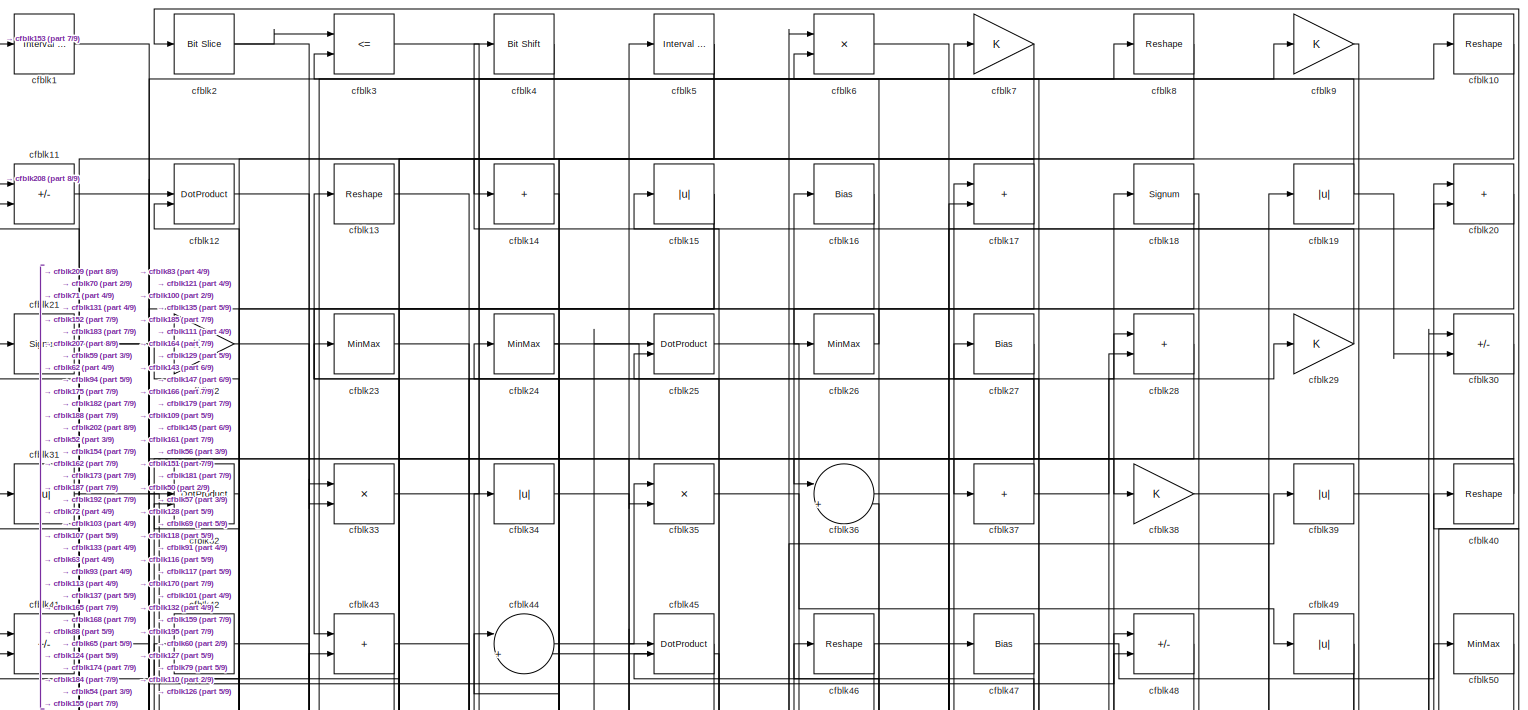
[diagram: root canvas - part 1/9, full width, top band]
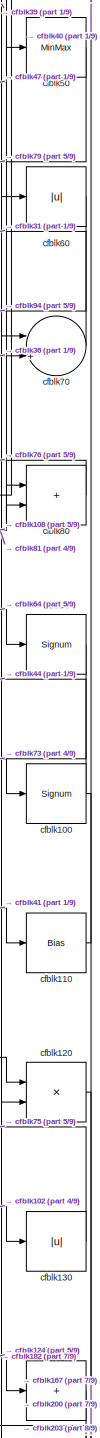
[diagram: root canvas - part 2/9, middle right region]
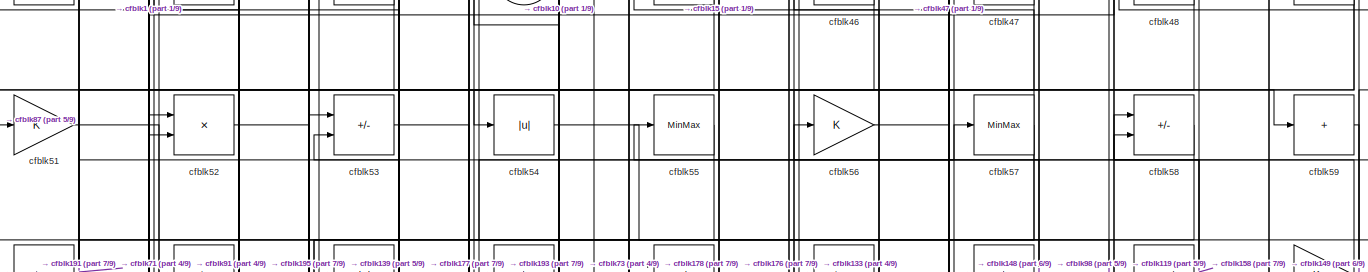
[diagram: root canvas - part 3/9, full width, top band]
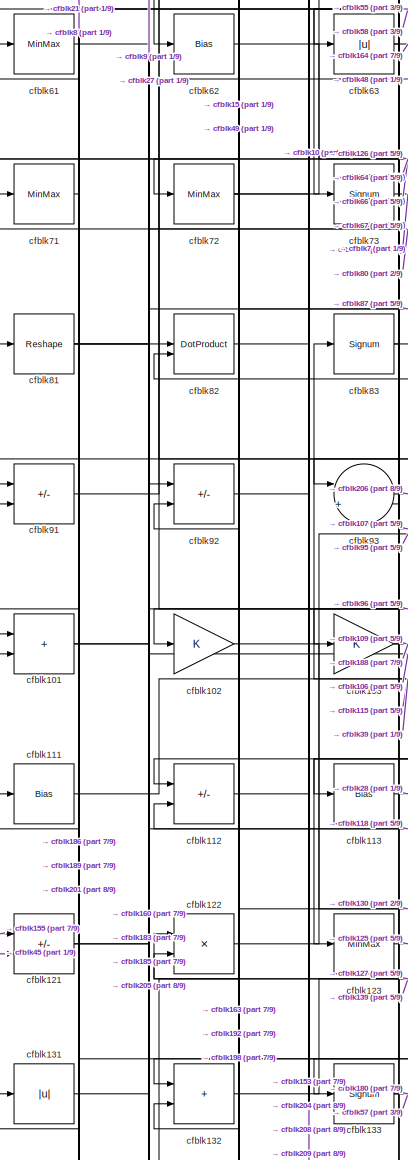
[diagram: root canvas - part 4/9, middle left region]
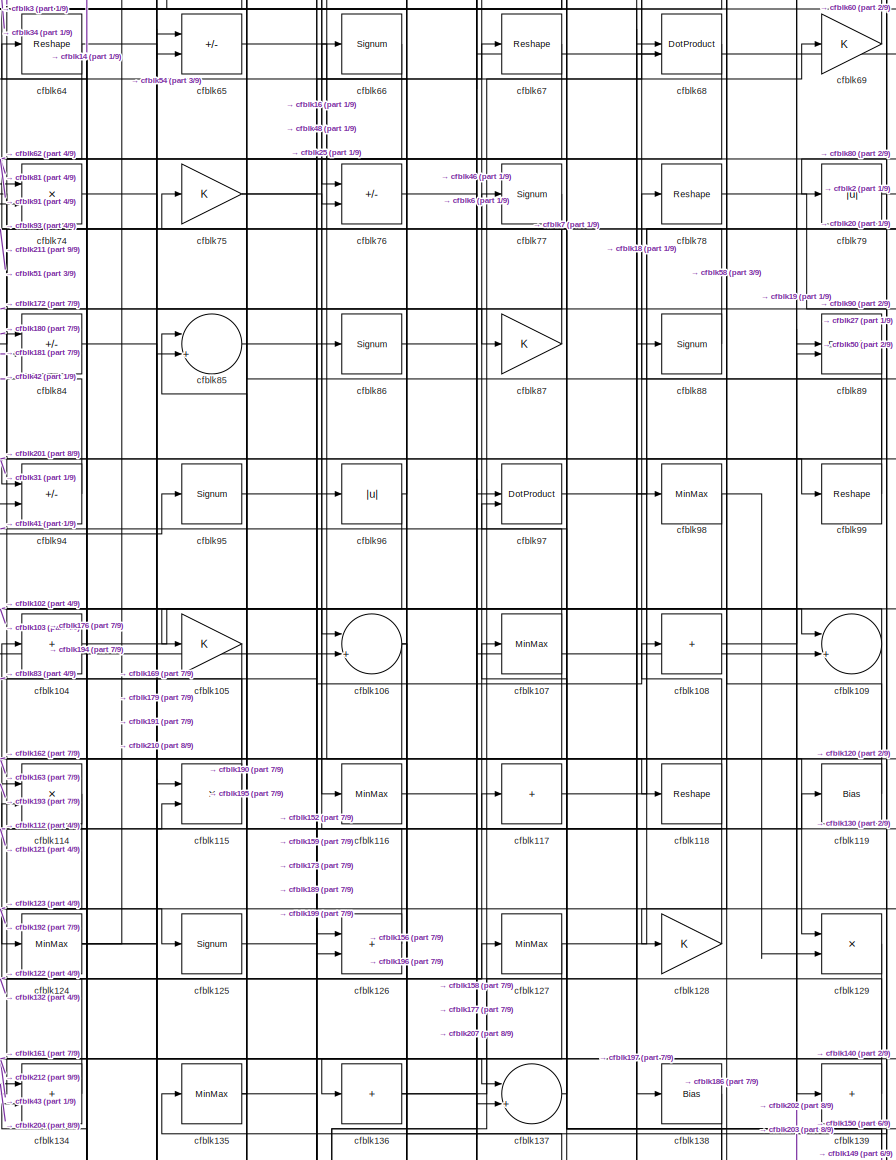
[diagram: root canvas - part 5/9, central region]
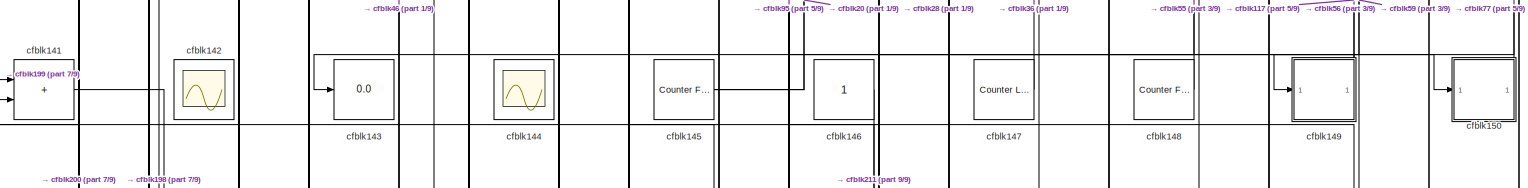
[diagram: root canvas - part 6/9, full width, middle band]
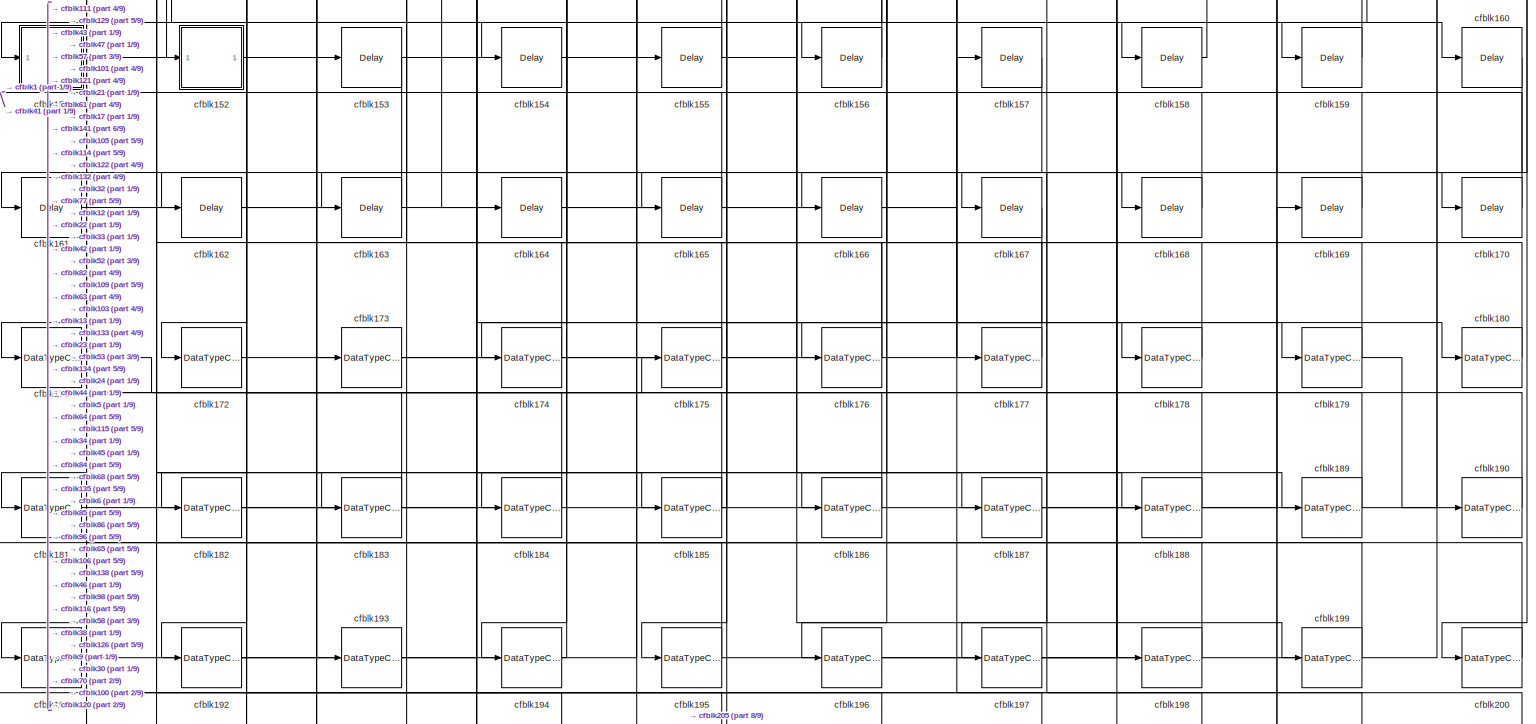
[diagram: root canvas - part 7/9, full width, bottom band]
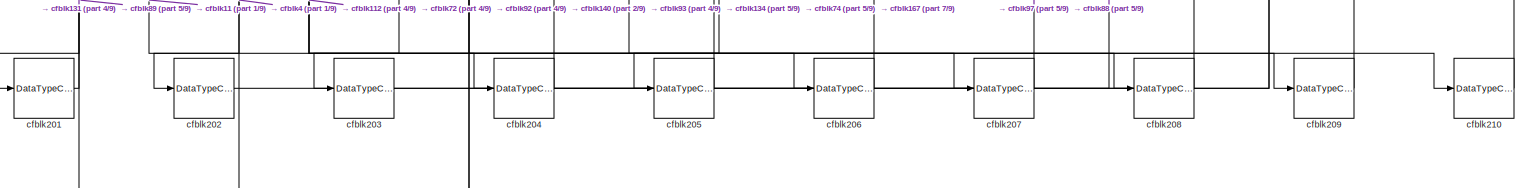
[diagram: root canvas - part 8/9, full width, bottom band]
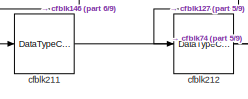
[diagram: root canvas - part 9/9, bottom left region]
MODEL slx_d4f791495eb2
KIND model
CONFIG AbsTol = auto
CONFIG EnableMultiTasking = off
CONFIG FixedStep = auto
CONFIG MaxStep = auto
CONFIG MinStep = auto
CONFIG RelTol = 1e-3
CONFIG SampleTimeConstraint = Unconstrained
CONFIG SolverName = VariableStepAuto
CONFIG StartTime = 0.0
CONFIG StopTime = 10.0
BLOCK [Reference] cfblk1  REF=hdlsllib/Logic and Bit
Operations/Interval Test
  SourceBlock = hdlsllib/Logic and Bit\nOperations/Interval Test
  SourceType = Interval Test
BLOCK [Reshape] cfblk10
BLOCK [Signum] cfblk100
BLOCK [Sum] cfblk101
  IconShape = rectangular
BLOCK [Gain] cfblk102
BLOCK [Gain] cfblk103
BLOCK [Sum] cfblk104
  IconShape = rectangular
  Inputs = +
BLOCK [Gain] cfblk105
BLOCK [Sum] cfblk106
  Inputs = |++
BLOCK [MinMax] cfblk107
BLOCK [Sum] cfblk108
  IconShape = rectangular
  Inputs = +
BLOCK [Sum] cfblk109
  Inputs = |++
BLOCK [Sum] cfblk11
  IconShape = rectangular
  Inputs = +-
BLOCK [Bias] cfblk110
  Bias = 0.0
  SaturateOnIntegerOverflow = off
BLOCK [Bias] cfblk111
  Bias = 0.0
  SaturateOnIntegerOverflow = off
BLOCK [Sum] cfblk112
  IconShape = rectangular
  Inputs = +-
BLOCK [Bias] cfblk113
  Bias = 0.0
  SaturateOnIntegerOverflow = off
BLOCK [Product] cfblk114
  Inputs = */
  RndMeth = Zero
  SaturateOnIntegerOverflow = on
BLOCK [Product] cfblk115
  Inputs = */
  RndMeth = Zero
  SaturateOnIntegerOverflow = on
BLOCK [MinMax] cfblk116
BLOCK [Sum] cfblk117
  IconShape = rectangular
  Inputs = +
BLOCK [Reshape] cfblk118
BLOCK [Bias] cfblk119
  Bias = 0.0
  SaturateOnIntegerOverflow = off
BLOCK [DotProduct] cfblk12
  OutDataTypeStr = Inherit: Inherit via internal rule
BLOCK [Product] cfblk120
  Inputs = */
  RndMeth = Zero
  SaturateOnIntegerOverflow = on
BLOCK [Sum] cfblk121
  IconShape = rectangular
  Inputs = +-
BLOCK [Product] cfblk122
  Inputs = */
  RndMeth = Zero
  SaturateOnIntegerOverflow = on
BLOCK [MinMax] cfblk123
BLOCK [MinMax] cfblk124
BLOCK [Signum] cfblk125
BLOCK [Sum] cfblk126
  IconShape = rectangular
BLOCK [MinMax] cfblk127
BLOCK [Gain] cfblk128
BLOCK [Product] cfblk129
  Inputs = */
  RndMeth = Zero
  SaturateOnIntegerOverflow = on
BLOCK [Reshape] cfblk13
BLOCK [Abs] cfblk130
  SaturateOnIntegerOverflow = off
BLOCK [Abs] cfblk131
  SaturateOnIntegerOverflow = off
BLOCK [Sum] cfblk132
  IconShape = rectangular
BLOCK [Signum] cfblk133
BLOCK [Sum] cfblk134
  IconShape = rectangular
BLOCK [MinMax] cfblk135
BLOCK [Sum] cfblk136
  IconShape = rectangular
  Inputs = +
BLOCK [Sum] cfblk137
  Inputs = |++
BLOCK [Bias] cfblk138
  Bias = 0.0
  SaturateOnIntegerOverflow = off
BLOCK [Sum] cfblk139
  IconShape = rectangular
  Inputs = +
BLOCK [Sum] cfblk14
  IconShape = rectangular
  Inputs = +
BLOCK [Sum] cfblk140
  IconShape = rectangular
  Inputs = +
BLOCK [Sum] cfblk141
  IconShape = rectangular
BLOCK [Scope] cfblk142
  Floating = on
  NumInputPorts = 1
  ScopeSpecificationString = Simulink.scopes.TimeScopeBlockCfg('CurrentConfiguration', extmgr.ConfigurationSet(extmgr.Configuration('Core','General UI',true,'FigureColor',[0.156862745098039 0.156862745098039 0.156862745098039]),extmgr.Configuration('Core','Source UI',true),extmgr.Configuration('Sources','WiredSimulink',true,'DataLoggingVariableName','ScopeData1','DataLoggingSaveFormat','StructureWithTime','DataLoggingLimitDat...<+2713ch>
BLOCK [Display] cfblk143
  Decimation = 1
BLOCK [Scope] cfblk144
  Floating = on
  NumInputPorts = 1
  ScopeSpecificationString = Simulink.scopes.TimeScopeBlockCfg('CurrentConfiguration', extmgr.ConfigurationSet(extmgr.Configuration('Core','General UI',true,'FigureColor',[0.156862745098039 0.156862745098039 0.156862745098039]),extmgr.Configuration('Core','Source UI',true),extmgr.Configuration('Sources','WiredSimulink',true,'DataLoggingVariableName','ScopeData1','DataLoggingSaveFormat','StructureWithTime','DataLoggingLimitDat...<+2713ch>
BLOCK [Reference] cfblk145  REF=hdlsllib/Sources/Counter
Free-Running
  SourceBlock = hdlsllib/Sources/Counter\nFree-Running
  SourceType = Counter Free-Running
BLOCK [Constant] cfblk146
  SampleTime = -1
BLOCK [Reference] cfblk147  REF=hdlsllib/Sources/Counter
Limited
  SourceBlock = hdlsllib/Sources/Counter\nLimited
  SourceType = Counter Limited
BLOCK [Reference] cfblk148  REF=hdlsllib/Sources/Counter
Free-Running
  SourceBlock = hdlsllib/Sources/Counter\nFree-Running
  SourceType = Counter Free-Running
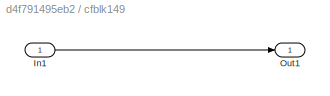
BLOCK [SubSystem] cfblk149
  LibrarySourceBlock = hdlsllib/Ports &\nSubsystems/Subsystem
BLOCK [Inport] cfblk149/In1
BLOCK [Outport] cfblk149/Out1
BLOCK [Abs] cfblk15
  SaturateOnIntegerOverflow = off
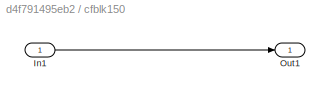
BLOCK [SubSystem] cfblk150
  LibrarySourceBlock = hdlsllib/Ports &\nSubsystems/Subsystem
BLOCK [Inport] cfblk150/In1
BLOCK [Outport] cfblk150/Out1
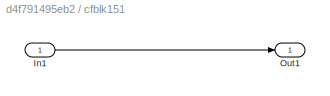
BLOCK [SubSystem] cfblk151
  LibrarySourceBlock = hdlsllib/Ports &\nSubsystems/Subsystem
BLOCK [Inport] cfblk151/In1
BLOCK [Outport] cfblk151/Out1
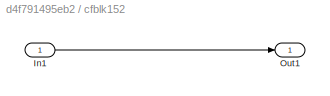
BLOCK [SubSystem] cfblk152
  LibrarySourceBlock = hdlsllib/Ports &\nSubsystems/Subsystem
BLOCK [Inport] cfblk152/In1
BLOCK [Outport] cfblk152/Out1
BLOCK [Delay] cfblk153
  InputPortMap = u0
  SampleTime = 1
BLOCK [Delay] cfblk154
  InputPortMap = u0
  SampleTime = 1
BLOCK [Delay] cfblk155
  InputPortMap = u0
  SampleTime = 1
BLOCK [Delay] cfblk156
  InputPortMap = u0
  SampleTime = 1
BLOCK [Delay] cfblk157
  InputPortMap = u0
  SampleTime = 1
BLOCK [Delay] cfblk158
  InputPortMap = u0
  SampleTime = 1
BLOCK [Delay] cfblk159
  InputPortMap = u0
  SampleTime = 1
BLOCK [Bias] cfblk16
  Bias = 0.0
  SaturateOnIntegerOverflow = off
BLOCK [Delay] cfblk160
  InputPortMap = u0
  SampleTime = 1
BLOCK [Delay] cfblk161
  InputPortMap = u0
  SampleTime = 1
BLOCK [Delay] cfblk162
  InputPortMap = u0
  SampleTime = 1
BLOCK [Delay] cfblk163
  InputPortMap = u0
  SampleTime = 1
BLOCK [Delay] cfblk164
  InputPortMap = u0
  SampleTime = 1
BLOCK [Delay] cfblk165
  InputPortMap = u0
  SampleTime = 1
BLOCK [Delay] cfblk166
  InputPortMap = u0
  SampleTime = 1
BLOCK [Delay] cfblk167
  InputPortMap = u0
  SampleTime = 1
BLOCK [Delay] cfblk168
  InputPortMap = u0
  SampleTime = 1
BLOCK [Delay] cfblk169
  InputPortMap = u0
  SampleTime = 1
BLOCK [Sum] cfblk17
  IconShape = rectangular
BLOCK [Delay] cfblk170
  InputPortMap = u0
  SampleTime = 1
BLOCK [DataTypeConversion] cfblk171
  OutDataTypeStr = uint8
  RndMeth = Floor
  SaturateOnIntegerOverflow = off
BLOCK [DataTypeConversion] cfblk172
  OutDataTypeStr = uint8
  RndMeth = Floor
  SaturateOnIntegerOverflow = off
BLOCK [DataTypeConversion] cfblk173
  OutDataTypeStr = uint8
  RndMeth = Floor
  SaturateOnIntegerOverflow = off
BLOCK [DataTypeConversion] cfblk174
  OutDataTypeStr = uint8
  RndMeth = Floor
  SaturateOnIntegerOverflow = off
BLOCK [DataTypeConversion] cfblk175
  OutDataTypeStr = uint8
  RndMeth = Floor
  SaturateOnIntegerOverflow = off
BLOCK [DataTypeConversion] cfblk176
  RndMeth = Floor
  SaturateOnIntegerOverflow = off
BLOCK [DataTypeConversion] cfblk177
  OutDataTypeStr = uint8
  RndMeth = Floor
  SaturateOnIntegerOverflow = off
BLOCK [DataTypeConversion] cfblk178
  OutDataTypeStr = uint8
  RndMeth = Floor
  SaturateOnIntegerOverflow = off
BLOCK [DataTypeConversion] cfblk179
  RndMeth = Floor
  SaturateOnIntegerOverflow = off
BLOCK [Signum] cfblk18
BLOCK [DataTypeConversion] cfblk180
  OutDataTypeStr = uint8
  RndMeth = Floor
  SaturateOnIntegerOverflow = off
BLOCK [DataTypeConversion] cfblk181
  OutDataTypeStr = uint8
  RndMeth = Floor
  SaturateOnIntegerOverflow = off
BLOCK [DataTypeConversion] cfblk182
  OutDataTypeStr = uint8
  RndMeth = Floor
  SaturateOnIntegerOverflow = off
BLOCK [DataTypeConversion] cfblk183
  OutDataTypeStr = uint8
  RndMeth = Floor
  SaturateOnIntegerOverflow = off
BLOCK [DataTypeConversion] cfblk184
  OutDataTypeStr = uint8
  RndMeth = Floor
  SaturateOnIntegerOverflow = off
BLOCK [DataTypeConversion] cfblk185
  RndMeth = Floor
  SaturateOnIntegerOverflow = off
BLOCK [DataTypeConversion] cfblk186
  OutDataTypeStr = uint8
  RndMeth = Floor
  SaturateOnIntegerOverflow = off
BLOCK [DataTypeConversion] cfblk187
  OutDataTypeStr = uint8
  RndMeth = Floor
  SaturateOnIntegerOverflow = off
BLOCK [DataTypeConversion] cfblk188
  OutDataTypeStr = uint8
  RndMeth = Floor
  SaturateOnIntegerOverflow = off
BLOCK [DataTypeConversion] cfblk189
  OutDataTypeStr = uint8
  RndMeth = Floor
  SaturateOnIntegerOverflow = off
BLOCK [Abs] cfblk19
  SaturateOnIntegerOverflow = off
BLOCK [DataTypeConversion] cfblk190
  OutDataTypeStr = uint8
  RndMeth = Floor
  SaturateOnIntegerOverflow = off
BLOCK [DataTypeConversion] cfblk191
  OutDataTypeStr = uint8
  RndMeth = Floor
  SaturateOnIntegerOverflow = off
BLOCK [DataTypeConversion] cfblk192
  RndMeth = Floor
  SaturateOnIntegerOverflow = off
BLOCK [DataTypeConversion] cfblk193
  OutDataTypeStr = uint8
  RndMeth = Floor
  SaturateOnIntegerOverflow = off
BLOCK [DataTypeConversion] cfblk194
  OutDataTypeStr = uint8
  RndMeth = Floor
  SaturateOnIntegerOverflow = off
BLOCK [DataTypeConversion] cfblk195
  RndMeth = Floor
  SaturateOnIntegerOverflow = off
BLOCK [DataTypeConversion] cfblk196
  OutDataTypeStr = uint8
  RndMeth = Floor
  SaturateOnIntegerOverflow = off
BLOCK [DataTypeConversion] cfblk197
  OutDataTypeStr = uint8
  RndMeth = Floor
  SaturateOnIntegerOverflow = off
BLOCK [DataTypeConversion] cfblk198
  OutDataTypeStr = uint8
  RndMeth = Floor
  SaturateOnIntegerOverflow = off
BLOCK [DataTypeConversion] cfblk199
  OutDataTypeStr = uint8
  RndMeth = Floor
  SaturateOnIntegerOverflow = off
BLOCK [Reference] cfblk2  REF=hdlsllib/Logic and Bit
Operations/Bit Slice
  SourceBlock = hdlsllib/Logic and Bit\nOperations/Bit Slice
  SourceType = Bit Slice
BLOCK [Sum] cfblk20
  IconShape = rectangular
BLOCK [DataTypeConversion] cfblk200
  OutDataTypeStr = uint8
  RndMeth = Floor
  SaturateOnIntegerOverflow = off
BLOCK [DataTypeConversion] cfblk201
  OutDataTypeStr = uint8
  RndMeth = Floor
  SaturateOnIntegerOverflow = off
BLOCK [DataTypeConversion] cfblk202
  OutDataTypeStr = uint8
  RndMeth = Floor
  SaturateOnIntegerOverflow = off
BLOCK [DataTypeConversion] cfblk203
  OutDataTypeStr = uint8
  RndMeth = Floor
  SaturateOnIntegerOverflow = off
BLOCK [DataTypeConversion] cfblk204
  RndMeth = Floor
  SaturateOnIntegerOverflow = off
BLOCK [DataTypeConversion] cfblk205
  OutDataTypeStr = uint8
  RndMeth = Floor
  SaturateOnIntegerOverflow = off
BLOCK [DataTypeConversion] cfblk206
  OutDataTypeStr = uint8
  RndMeth = Floor
  SaturateOnIntegerOverflow = off
BLOCK [DataTypeConversion] cfblk207
  OutDataTypeStr = uint8
  RndMeth = Floor
  SaturateOnIntegerOverflow = off
BLOCK [DataTypeConversion] cfblk208
  OutDataTypeStr = uint8
  RndMeth = Floor
  SaturateOnIntegerOverflow = off
BLOCK [DataTypeConversion] cfblk209
  OutDataTypeStr = uint8
  RndMeth = Floor
  SaturateOnIntegerOverflow = off
BLOCK [Signum] cfblk21
BLOCK [DataTypeConversion] cfblk210
  OutDataTypeStr = uint8
  RndMeth = Floor
  SaturateOnIntegerOverflow = off
BLOCK [DataTypeConversion] cfblk211
  OutDataTypeStr = uint8
  RndMeth = Floor
  SaturateOnIntegerOverflow = off
BLOCK [DataTypeConversion] cfblk212
  OutDataTypeStr = uint8
  RndMeth = Floor
  SaturateOnIntegerOverflow = off
BLOCK [Gain] cfblk22
BLOCK [MinMax] cfblk23
BLOCK [MinMax] cfblk24
BLOCK [DotProduct] cfblk25
  OutDataTypeStr = Inherit: Inherit via internal rule
BLOCK [MinMax] cfblk26
BLOCK [Bias] cfblk27
  Bias = 0.0
  SaturateOnIntegerOverflow = off
BLOCK [Sum] cfblk28
  IconShape = rectangular
BLOCK [Gain] cfblk29
BLOCK [RelationalOperator] cfblk3
  InputSameDT = off
  Operator = <=
  OutDataTypeStr = boolean
BLOCK [Sum] cfblk30
  IconShape = rectangular
  Inputs = +-
BLOCK [Abs] cfblk31
  SaturateOnIntegerOverflow = off
BLOCK [DotProduct] cfblk32
  OutDataTypeStr = Inherit: Inherit via internal rule
BLOCK [Product] cfblk33
  Inputs = */
  RndMeth = Zero
  SaturateOnIntegerOverflow = on
BLOCK [Abs] cfblk34
  SaturateOnIntegerOverflow = off
BLOCK [Product] cfblk35
  Inputs = */
  RndMeth = Zero
  SaturateOnIntegerOverflow = on
BLOCK [Sum] cfblk36
  Inputs = |++
BLOCK [Sum] cfblk37
  IconShape = rectangular
  Inputs = +
BLOCK [Gain] cfblk38
BLOCK [Abs] cfblk39
  SaturateOnIntegerOverflow = off
BLOCK [Reference] cfblk4  REF=hdlsllib/Logic and Bit
Operations/Bit Shift
  SourceBlock = hdlsllib/Logic and Bit\nOperations/Bit Shift
  SourceType = Bit Shift
BLOCK [Reshape] cfblk40
BLOCK [Sum] cfblk41
  IconShape = rectangular
  Inputs = +-
BLOCK [Sum] cfblk42
  IconShape = rectangular
  Inputs = +
BLOCK [Sum] cfblk43
  IconShape = rectangular
BLOCK [Sum] cfblk44
  Inputs = |++
BLOCK [DotProduct] cfblk45
  OutDataTypeStr = Inherit: Inherit via internal rule
BLOCK [Reshape] cfblk46
BLOCK [Bias] cfblk47
  Bias = 0.0
  SaturateOnIntegerOverflow = off
BLOCK [Sum] cfblk48
  IconShape = rectangular
  Inputs = +-
BLOCK [Abs] cfblk49
  SaturateOnIntegerOverflow = off
BLOCK [Reference] cfblk5  REF=hdlsllib/Logic and Bit
Operations/Interval Test
  SourceBlock = hdlsllib/Logic and Bit\nOperations/Interval Test
  SourceType = Interval Test
BLOCK [MinMax] cfblk50
BLOCK [Gain] cfblk51
BLOCK [Product] cfblk52
  Inputs = */
  RndMeth = Zero
  SaturateOnIntegerOverflow = on
BLOCK [Sum] cfblk53
  IconShape = rectangular
  Inputs = +-
BLOCK [Abs] cfblk54
  SaturateOnIntegerOverflow = off
BLOCK [MinMax] cfblk55
BLOCK [Gain] cfblk56
BLOCK [MinMax] cfblk57
BLOCK [Sum] cfblk58
  IconShape = rectangular
  Inputs = +-
BLOCK [Sum] cfblk59
  IconShape = rectangular
  Inputs = +
BLOCK [Product] cfblk6
  Inputs = */
  RndMeth = Zero
  SaturateOnIntegerOverflow = on
BLOCK [Abs] cfblk60
  SaturateOnIntegerOverflow = off
BLOCK [MinMax] cfblk61
BLOCK [Bias] cfblk62
  Bias = 0.0
  SaturateOnIntegerOverflow = off
BLOCK [Abs] cfblk63
  SaturateOnIntegerOverflow = off
BLOCK [Reshape] cfblk64
BLOCK [Sum] cfblk65
  IconShape = rectangular
  Inputs = +-
BLOCK [Signum] cfblk66
BLOCK [Reshape] cfblk67
BLOCK [DotProduct] cfblk68
  OutDataTypeStr = Inherit: Inherit via internal rule
BLOCK [Gain] cfblk69
BLOCK [Gain] cfblk7
BLOCK [Sum] cfblk70
  Inputs = |++
BLOCK [MinMax] cfblk71
BLOCK [MinMax] cfblk72
BLOCK [Signum] cfblk73
BLOCK [Product] cfblk74
  Inputs = */
  RndMeth = Zero
  SaturateOnIntegerOverflow = on
BLOCK [Gain] cfblk75
BLOCK [Sum] cfblk76
  IconShape = rectangular
  Inputs = +-
BLOCK [Signum] cfblk77
BLOCK [Reshape] cfblk78
BLOCK [Abs] cfblk79
  SaturateOnIntegerOverflow = off
BLOCK [Reshape] cfblk8
BLOCK [Sum] cfblk80
  IconShape = rectangular
BLOCK [Reshape] cfblk81
BLOCK [DotProduct] cfblk82
  OutDataTypeStr = Inherit: Inherit via internal rule
BLOCK [Signum] cfblk83
BLOCK [Sum] cfblk84
  IconShape = rectangular
  Inputs = +-
BLOCK [Sum] cfblk85
  Inputs = |++
BLOCK [Signum] cfblk86
BLOCK [Gain] cfblk87
BLOCK [Signum] cfblk88
BLOCK [DotProduct] cfblk89
  OutDataTypeStr = Inherit: Inherit via internal rule
BLOCK [Gain] cfblk9
BLOCK [Signum] cfblk90
BLOCK [Sum] cfblk91
  IconShape = rectangular
  Inputs = +-
BLOCK [Sum] cfblk92
  IconShape = rectangular
  Inputs = +-
BLOCK [Sum] cfblk93
  Inputs = |++
BLOCK [Sum] cfblk94
  IconShape = rectangular
  Inputs = +-
BLOCK [Signum] cfblk95
BLOCK [Abs] cfblk96
  SaturateOnIntegerOverflow = off
BLOCK [DotProduct] cfblk97
  OutDataTypeStr = Inherit: Inherit via internal rule
BLOCK [MinMax] cfblk98
BLOCK [Reshape] cfblk99
NET cfblk100:1 -> cfblk200:1, cfblk44:2
NET cfblk101:1 -> cfblk160:1, cfblk9:1
LINE cfblk102:1 -> cfblk130:1
NET cfblk103:1 -> cfblk109:1, cfblk188:1
LINE cfblk104:1 -> cfblk106:1
LINE cfblk105:1 -> cfblk162:1
NET cfblk106:1 -> cfblk136:1, cfblk156:1, cfblk194:1
NET cfblk107:1 -> cfblk123:1, cfblk41:2
LINE cfblk108:1 -> cfblk80:2
NET cfblk109:1 -> cfblk105:1, cfblk163:1
LINE cfblk10:1 -> cfblk54:1
LINE cfblk110:1 -> cfblk40:1
LINE cfblk111:1 -> cfblk39:1
LINE cfblk112:1 -> cfblk208:1
LINE cfblk113:1 -> cfblk28:1
LINE cfblk114:1 -> cfblk192:1
LINE cfblk115:1 -> cfblk83:1
LINE cfblk116:1 -> cfblk158:1
LINE cfblk117:1 -> cfblk19:1
NET cfblk118:1 -> cfblk112:2, cfblk18:1
LINE cfblk119:1 -> cfblk58:1
LINE cfblk11:1 -> cfblk207:1
LINE cfblk120:1 -> cfblk167:1
NET cfblk121:1 -> cfblk115:2, cfblk183:1
LINE cfblk122:1 -> cfblk95:1
LINE cfblk123:1 -> cfblk125:1
NET cfblk124:1 -> cfblk119:1, cfblk140:1, cfblk25:1
LINE cfblk125:1 -> cfblk108:1
LINE cfblk126:1 -> cfblk16:1
NET cfblk127:1 -> cfblk20:1, cfblk212:1
LINE cfblk128:1 -> cfblk7:1
LINE cfblk129:1 -> cfblk161:1
LINE cfblk12:1 -> cfblk173:1
LINE cfblk130:1 -> cfblk75:1
LINE cfblk131:1 -> cfblk48:2
LINE cfblk132:1 -> cfblk127:1
NET cfblk133:1 -> cfblk180:1, cfblk57:1
LINE cfblk134:1 -> cfblk104:1
NET cfblk135:1 -> cfblk199:1, cfblk25:2
NET cfblk136:1 -> cfblk137:2, cfblk69:1
LINE cfblk137:1 -> cfblk107:1
LINE cfblk138:1 -> cfblk186:1
LINE cfblk139:1 -> cfblk122:1
LINE cfblk13:1 -> cfblk168:1
LINE cfblk140:1 -> cfblk203:1
LINE cfblk141:1 -> cfblk198:1
NET cfblk145:1 -> cfblk20:2, cfblk28:2
LINE cfblk146:1 -> cfblk211:1
LINE cfblk147:1 -> cfblk36:2
LINE cfblk148:1 -> cfblk55:1
LINE cfblk149/In1:1 -> cfblk149/Out1:1
NET cfblk149:1 -> cfblk117:1, cfblk56:1
LINE cfblk14:1 -> cfblk124:1
LINE cfblk150/In1:1 -> cfblk150/Out1:1
LINE cfblk150:1 -> cfblk77:1
LINE cfblk151/In1:1 -> cfblk151/Out1:1
LINE cfblk151:1 -> cfblk17:1
LINE cfblk152/In1:1 -> cfblk152/Out1:1
LINE cfblk152:1 -> cfblk96:1
LINE cfblk153:1 -> cfblk1:1
LINE cfblk154:1 -> cfblk45:1
LINE cfblk155:1 -> cfblk121:1
LINE cfblk156:1 -> cfblk65:1
LINE cfblk157:1 -> cfblk171:1
LINE cfblk158:1 -> cfblk58:2
LINE cfblk159:1 -> cfblk126:1
NET cfblk15:1 -> cfblk52:2, cfblk72:1
LINE cfblk160:1 -> cfblk197:1
LINE cfblk161:1 -> cfblk17:2
LINE cfblk162:1 -> cfblk43:2
LINE cfblk163:1 -> cfblk132:2
LINE cfblk164:1 -> cfblk6:1
LINE cfblk165:1 -> cfblk44:1
LINE cfblk166:1 -> cfblk178:1
LINE cfblk167:1 -> cfblk205:1
LINE cfblk168:1 -> cfblk41:1
LINE cfblk169:1 -> cfblk115:1
LINE cfblk16:1 -> cfblk43:1
LINE cfblk170:1 -> cfblk24:1
LINE cfblk171:1 -> cfblk175:1
LINE cfblk172:1 -> cfblk157:1
LINE cfblk173:1 -> cfblk86:1
LINE cfblk174:1 -> cfblk12:1
LINE cfblk175:1 -> cfblk12:2
NET cfblk176:1 -> cfblk134:2, cfblk64:1
LINE cfblk177:1 -> cfblk53:1
LINE cfblk178:1 -> cfblk53:2
NET cfblk179:1 -> cfblk190:1, cfblk46:1
NET cfblk17:1 -> cfblk14:1, cfblk166:1
LINE cfblk180:1 -> cfblk84:1
LINE cfblk181:1 -> cfblk84:2
LINE cfblk182:1 -> cfblk70:1
LINE cfblk183:1 -> cfblk32:1
LINE cfblk184:1 -> cfblk32:2
NET cfblk185:1 -> cfblk45:2, cfblk82:1
LINE cfblk186:1 -> cfblk61:1
LINE cfblk187:1 -> cfblk169:1
LINE cfblk188:1 -> cfblk22:1
LINE cfblk189:1 -> cfblk111:1
NET cfblk18:1 -> cfblk128:1, cfblk63:1
LINE cfblk190:1 -> cfblk85:1
LINE cfblk191:1 -> cfblk85:2
NET cfblk192:1 -> cfblk33:1, cfblk82:2
LINE cfblk193:1 -> cfblk114:1
LINE cfblk194:1 -> cfblk114:2
NET cfblk195:1 -> cfblk30:1, cfblk52:1
LINE cfblk196:1 -> cfblk68:1
LINE cfblk197:1 -> cfblk68:2
LINE cfblk198:1 -> cfblk122:2
LINE cfblk199:1 -> cfblk141:1
NET cfblk19:1 -> cfblk30:2, cfblk3:2
LINE cfblk1:1 -> cfblk59:1
LINE cfblk200:1 -> cfblk141:2
LINE cfblk201:1 -> cfblk131:1
LINE cfblk202:1 -> cfblk89:1
LINE cfblk203:1 -> cfblk89:2
NET cfblk204:1 -> cfblk134:1, cfblk88:1
LINE cfblk205:1 -> cfblk92:1
LINE cfblk206:1 -> cfblk92:2
LINE cfblk207:1 -> cfblk97:1
LINE cfblk208:1 -> cfblk11:1
LINE cfblk209:1 -> cfblk11:2
LINE cfblk20:1 -> cfblk26:1
LINE cfblk210:1 -> cfblk97:2
LINE cfblk211:1 -> cfblk74:1
LINE cfblk212:1 -> cfblk74:2
NET cfblk21:1 -> cfblk152:1, cfblk33:2
LINE cfblk22:1 -> cfblk187:1
LINE cfblk23:1 -> cfblk165:1
NET cfblk24:1 -> cfblk184:1, cfblk38:1
LINE cfblk25:1 -> cfblk129:1
LINE cfblk26:1 -> cfblk6:2
LINE cfblk27:1 -> cfblk62:1
LINE cfblk28:1 -> cfblk103:1
LINE cfblk29:1 -> cfblk4:1
NET cfblk2:1 -> cfblk35:2, cfblk3:1
LINE cfblk30:1 -> cfblk36:1
LINE cfblk31:1 -> cfblk94:1
LINE cfblk32:1 -> cfblk182:1
LINE cfblk33:1 -> cfblk8:1
LINE cfblk34:1 -> cfblk155:1
LINE cfblk35:1 -> cfblk49:1
LINE cfblk36:1 -> cfblk70:2
NET cfblk37:1 -> cfblk13:1, cfblk29:1
LINE cfblk38:1 -> cfblk170:1
LINE cfblk39:1 -> cfblk60:1
LINE cfblk3:1 -> cfblk65:2
LINE cfblk40:1 -> cfblk37:1
LINE cfblk41:1 -> cfblk110:1
LINE cfblk42:1 -> cfblk154:1
NET cfblk43:1 -> cfblk137:1, cfblk151:1
LINE cfblk44:1 -> cfblk35:1
LINE cfblk45:1 -> cfblk121:2
NET cfblk46:1 -> cfblk109:2, cfblk143:1
NET cfblk47:1 -> cfblk181:1, cfblk50:1
LINE cfblk48:1 -> cfblk116:1
NET cfblk49:1 -> cfblk101:2, cfblk132:1
LINE cfblk4:1 -> cfblk202:1
LINE cfblk50:1 -> cfblk79:1
LINE cfblk51:1 -> cfblk139:1
LINE cfblk52:1 -> cfblk193:1
LINE cfblk53:1 -> cfblk176:1
LINE cfblk54:1 -> cfblk98:1
LINE cfblk55:1 -> cfblk71:1
LINE cfblk56:1 -> cfblk47:1
NET cfblk57:1 -> cfblk15:1, cfblk191:1, cfblk91:2
LINE cfblk58:1 -> cfblk73:1
LINE cfblk59:1 -> cfblk149:1
NET cfblk5:1 -> cfblk174:1, cfblk93:2
LINE cfblk60:1 -> cfblk94:2
LINE cfblk61:1 -> cfblk185:1
LINE cfblk62:1 -> cfblk126:2
NET cfblk63:1 -> cfblk164:1, cfblk23:1
NET cfblk64:1 -> cfblk90:1, cfblk93:1
LINE cfblk65:1 -> cfblk138:1
LINE cfblk66:1 -> cfblk81:1
LINE cfblk67:1 -> cfblk91:1
LINE cfblk68:1 -> cfblk195:1
LINE cfblk69:1 -> cfblk27:1
LINE cfblk6:1 -> cfblk118:1
LINE cfblk70:1 -> cfblk31:1
LINE cfblk71:1 -> cfblk21:1
NET cfblk72:1 -> cfblk10:1, cfblk112:1, cfblk209:1
LINE cfblk73:1 -> cfblk100:1
LINE cfblk74:1 -> cfblk210:1
NET cfblk75:1 -> cfblk67:1, cfblk76:2
LINE cfblk76:1 -> cfblk120:1
LINE cfblk77:1 -> cfblk172:1
LINE cfblk78:1 -> cfblk135:1
LINE cfblk79:1 -> cfblk2:1
LINE cfblk7:1 -> cfblk133:1
LINE cfblk80:1 -> cfblk76:1
NET cfblk81:1 -> cfblk106:2, cfblk80:1, cfblk87:1
LINE cfblk82:1 -> cfblk153:1
NET cfblk83:1 -> cfblk113:1, cfblk5:1
LINE cfblk84:1 -> cfblk179:1
LINE cfblk85:1 -> cfblk189:1
LINE cfblk86:1 -> cfblk177:1
LINE cfblk87:1 -> cfblk51:1
LINE cfblk88:1 -> cfblk34:1
LINE cfblk89:1 -> cfblk201:1
LINE cfblk8:1 -> cfblk101:1
LINE cfblk90:1 -> cfblk120:2
LINE cfblk91:1 -> cfblk48:1
LINE cfblk92:1 -> cfblk204:1
LINE cfblk93:1 -> cfblk206:1
LINE cfblk94:1 -> cfblk42:1
LINE cfblk95:1 -> cfblk150:1
NET cfblk96:1 -> cfblk102:1, cfblk66:1
LINE cfblk97:1 -> cfblk99:1
NET cfblk98:1 -> cfblk129:2, cfblk196:1
LINE cfblk99:1 -> cfblk78:1
LINE cfblk9:1 -> cfblk159:1
note: NET lines group one-source signal fan-out (src -> all destinations, sorted); 1:1 wires keep LINE
